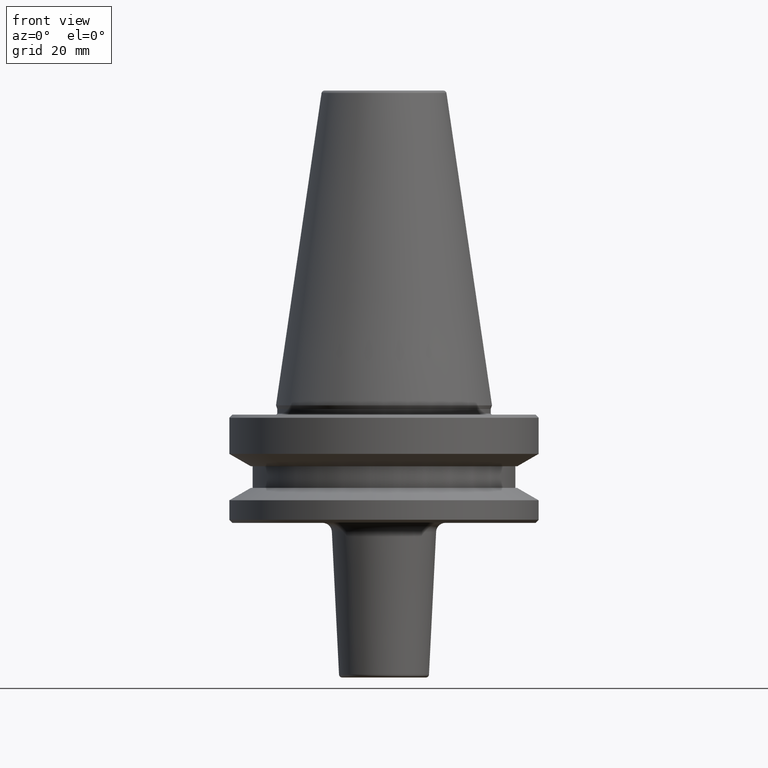
[diagram: clean part render]
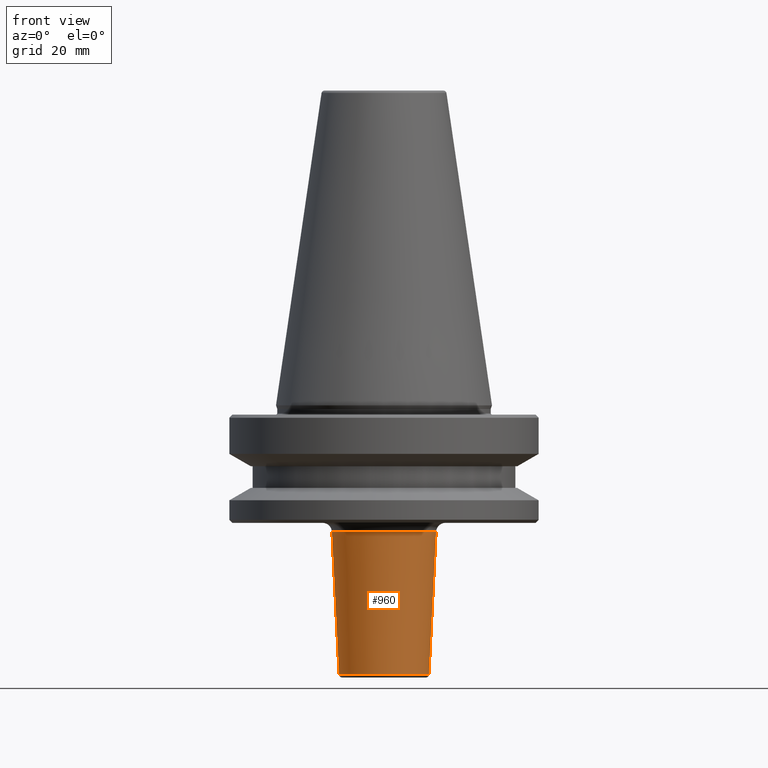
[diagram: same view with one face highlighted and labeled with its STEP entity id]
A machine part, front view. The second image highlights one B-rep face of the part: STEP entity #960.
In plain terms, the highlighted conical surface has half-angle 2.862 deg.
Its self-contained STEP definition (entity closure, byte-faithful):
#27 = VECTOR ( 'NONE', #858, 1000.000000000000200 ) ;
#49 = DIRECTION ( 'NONE',  ( -1.000000000000000000, 0.0000000000000000000, 0.0000000000000000000 ) ) ;
#67 = DIRECTION ( 'NONE',  ( 1.000000000000000000, 0.0000000000000000000, 0.0000000000000000000 ) ) ;
#211 = AXIS2_PLACEMENT_3D ( 'NONE', #989, #527, #67 ) ;
#236 = CARTESIAN_POINT ( 'NONE',  ( -17.00000000000003600, 2.081899558550504600E-015, -38.00000000000000700 ) ) ;
#285 = LINE ( 'NONE', #236, #27 ) ;
#317 = EDGE_CURVE ( 'NONE', #617, #926, #285, .T. ) ;
#336 = CARTESIAN_POINT ( 'NONE',  ( 17.00000000000003600, 0.0000000000000000000, -38.00000000000000700 ) ) ;
#343 = AXIS2_PLACEMENT_3D ( 'NONE', #717, #563, #655 ) ;
#348 = VERTEX_POINT ( 'NONE', #564 ) ;
#349 = FACE_OUTER_BOUND ( 'NONE', #622, .T. ) ;
#398 = CONICAL_SURFACE ( 'NONE', #343, 17.00000000000003600, 0.04995839572194248100 ) ;
#412 = ORIENTED_EDGE ( 'NONE', *, *, #699, .T. ) ;
#459 = CIRCLE ( 'NONE', #211, 14.54750311915285400 ) ;
#476 = ORIENTED_EDGE ( 'NONE', *, *, #962, .T. ) ;
#510 = CARTESIAN_POINT ( 'NONE',  ( -16.85749064254162000, 2.064447195704505600E-015, -40.85018714916832700 ) ) ;
#515 = DIRECTION ( 'NONE',  ( 0.0000000000000000000, 0.0000000000000000000, -1.000000000000000000 ) ) ;
#527 = DIRECTION ( 'NONE',  ( -0.0000000000000000000, -0.0000000000000000000, 1.000000000000000000 ) ) ;
#538 = VECTOR ( 'NONE', #875, 1000.000000000000200 ) ;
#563 = DIRECTION ( 'NONE',  ( -0.0000000000000000000, -0.0000000000000000000, 1.000000000000000000 ) ) ;
#564 = CARTESIAN_POINT ( 'NONE',  ( 16.85749064254162000, 0.0000000000000000000, -40.85018714916832700 ) ) ;
#577 = EDGE_CURVE ( 'NONE', #348, #926, #736, .T. ) ;
#616 = CARTESIAN_POINT ( 'NONE',  ( 14.54750311915285900, 0.0000000000000000000, -87.04993761694393600 ) ) ;
#617 = VERTEX_POINT ( 'NONE', #691 ) ;
#622 = EDGE_LOOP ( 'NONE', ( #771, #412, #476, #763 ) ) ;
#633 = LINE ( 'NONE', #336, #538 ) ;
#649 = AXIS2_PLACEMENT_3D ( 'NONE', #974, #515, #49 ) ;
#655 = DIRECTION ( 'NONE',  ( 1.000000000000000000, 0.0000000000000000000, 0.0000000000000000000 ) ) ;
#691 = CARTESIAN_POINT ( 'NONE',  ( -14.54750311915285900, 1.781555313045669000E-015, -87.04993761694393600 ) ) ;
#699 = EDGE_CURVE ( 'NONE', #617, #810, #459, .T. ) ;
#717 = CARTESIAN_POINT ( 'NONE',  ( 0.0000000000000000000, 0.0000000000000000000, -38.00000000000000700 ) ) ;
#736 = CIRCLE ( 'NONE', #649, 16.85749064254161700 ) ;
#763 = ORIENTED_EDGE ( 'NONE', *, *, #577, .T. ) ;
#771 = ORIENTED_EDGE ( 'NONE', *, *, #317, .F. ) ;
#810 = VERTEX_POINT ( 'NONE', #616 ) ;
#858 = DIRECTION ( 'NONE',  ( -0.04993761694389194100, 6.115594274738389200E-018, 0.9987523388778446500 ) ) ;
#875 = DIRECTION ( 'NONE',  ( 0.04993761694389194100, 0.0000000000000000000, 0.9987523388778446500 ) ) ;
#926 = VERTEX_POINT ( 'NONE', #510 ) ;
#960 = ADVANCED_FACE ( 'NONE', ( #349 ), #398, .T. ) ;
#962 = EDGE_CURVE ( 'NONE', #810, #348, #633, .T. ) ;
#974 = CARTESIAN_POINT ( 'NONE',  ( 0.0000000000000000000, 0.0000000000000000000, -40.85018714916832700 ) ) ;
#989 = CARTESIAN_POINT ( 'NONE',  ( 0.0000000000000000000, 0.0000000000000000000, -87.04993761694393600 ) ) ;